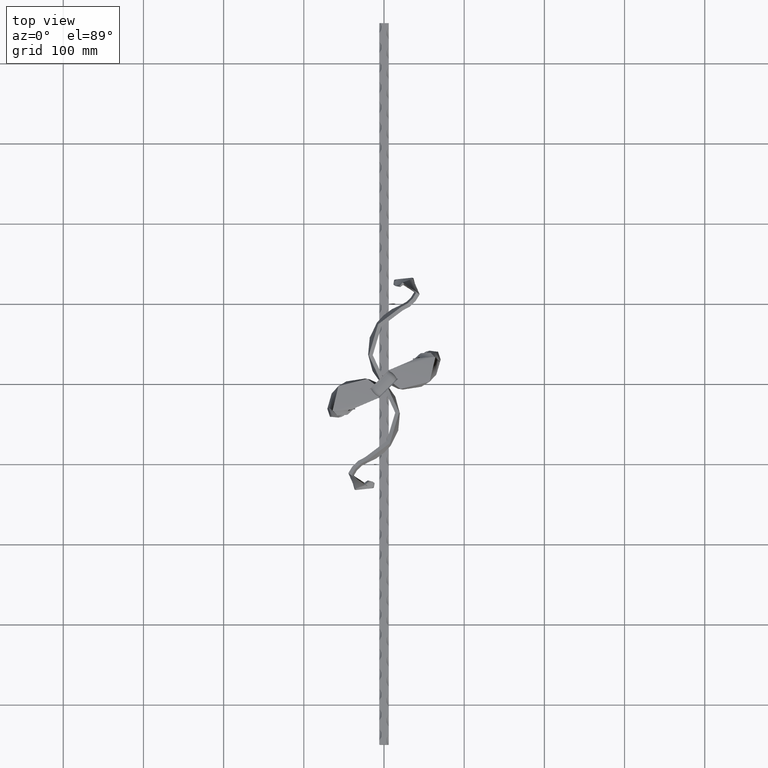
[diagram: clean part render]
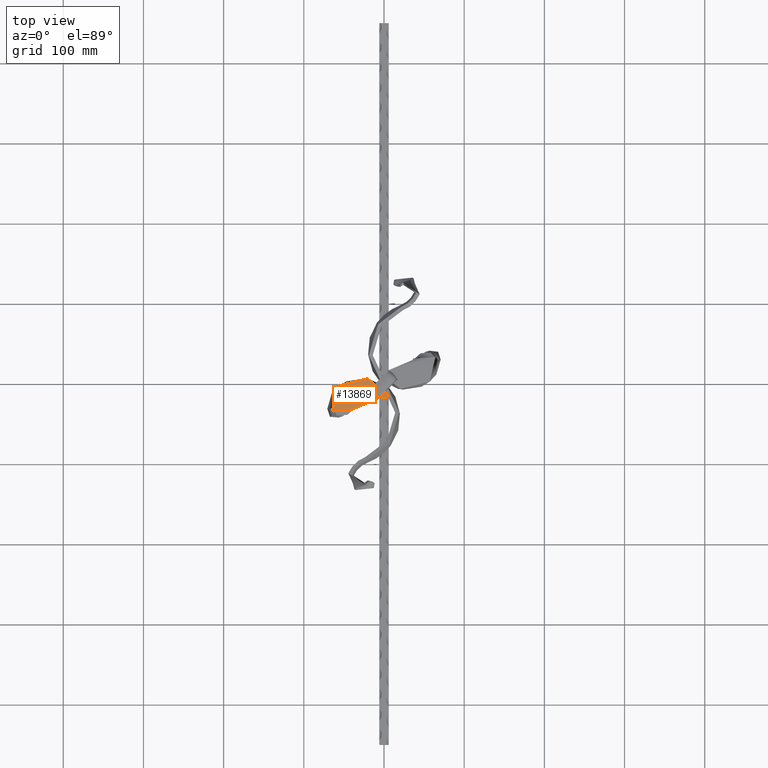
[diagram: same view with one face highlighted and labeled with its STEP entity id]
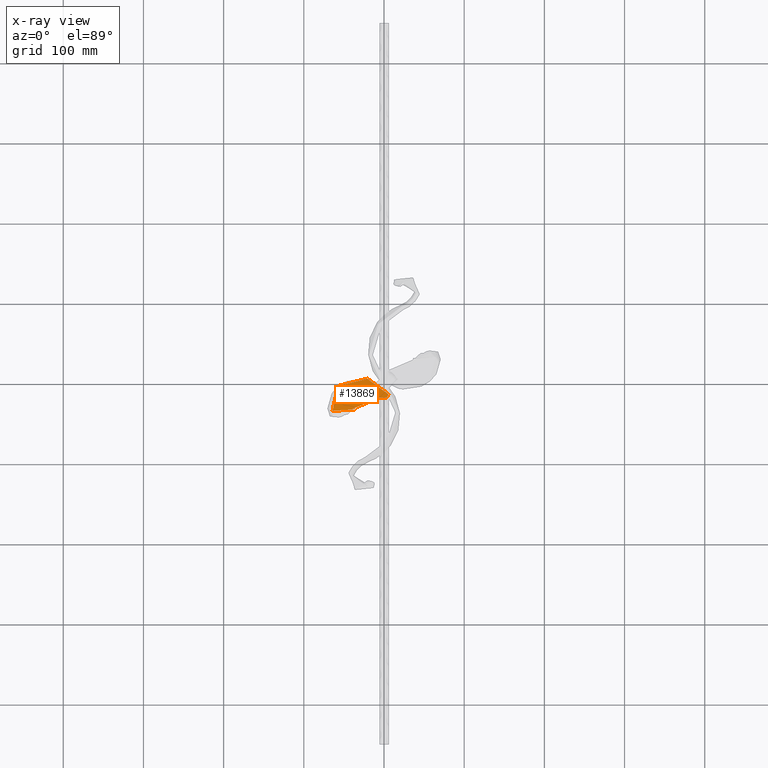
[diagram: x-ray of the same camera — body ghosted, the highlighted face saturated]
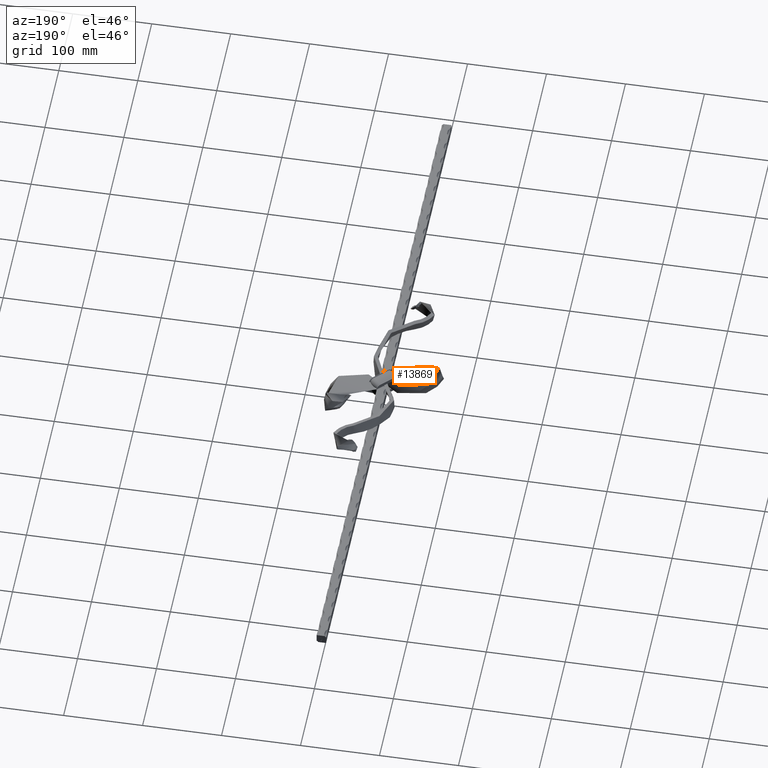
[diagram: same view with one face highlighted and labeled with its STEP entity id]
A machine part, top view. The second image highlights one B-rep face of the part: STEP entity #13869.
The next image is the same camera in x-ray: the body ghosted, the highlighted face saturated — about 0% of this face is hidden behind the body in this view.
A second angle (auxiliary view) of the same face is appended — the face is thin or edge-on in the first view.
In plain terms, the highlighted face is a freeform B-spline surface patch.
Its self-contained STEP definition (entity closure, byte-faithful):
#158 = CARTESIAN_POINT ( 'NONE',  ( 67.78751914885040719, 25.33979566040818554, 6.055768506382531946 ) ) ;
#163 = CARTESIAN_POINT ( 'NONE',  ( -2.475266252115406740, 5.742457473856078742, 6.000228846592173149 ) ) ;
#238 = CARTESIAN_POINT ( 'NONE',  ( 35.96194749927544621, 33.51179549491578769, 3.664867577499942186 ) ) ;
#301 = CARTESIAN_POINT ( 'NONE',  ( 24.92863133739036741, -7.257174107230437876, 5.980899869072010766 ) ) ;
#315 = B_SPLINE_CURVE_WITH_KNOTS ( 'NONE', 3,
 ( #21912, #13741, #18796, #16956, #8547, #8634, #1792, #158, #18641, #11725, #3429, #15371, #3276, #4980, #13518, #5124, #13446, #16874, #10109 ),
 .UNSPECIFIED., .F., .F.,
 ( 4, 1, 1, 1, 2, 2, 2, 1, 1, 1, 1, 2, 4 ),
 ( 0.02124183258938239574, 0.09576808707085894545, 0.1436521306062883974, 0.1915361741417178909, 0.2873042612127578166, 0.3299786063808718972, 0.4101979479414661900, 0.5673712298305753077, 0.6459578707748998561, 0.7245445117192245155, 0.7823707747071005913, 0.8817177936078736122, 0.9722380465416801121 ),
 .UNSPECIFIED. ) ;
#378 = CARTESIAN_POINT ( 'NONE',  ( 37.49622189125887672, 28.39810260074388992, 4.625000000000017764 ) ) ;
#459 = CARTESIAN_POINT ( 'NONE',  ( 67.78751914885040719, 25.33979566040818554, 6.055768506382531946 ) ) ;
#530 = CARTESIAN_POINT ( 'NONE',  ( 64.76554736995946371, 25.11351119081028216, 5.398745058738179559 ) ) ;
#532 = CARTESIAN_POINT ( 'NONE',  ( 39.55157802475095252, 31.63531004209999864, 5.425466922936881708 ) ) ;
#606 = CARTESIAN_POINT ( 'NONE',  ( 11.16462733762305248, 6.190484130613902458, 5.902392135463195189 ) ) ;
#687 = CARTESIAN_POINT ( 'NONE',  ( 34.89018020740272163, 2.234102114824530805, 6.370563190184192592 ) ) ;
#691 = CARTESIAN_POINT ( 'NONE',  ( 39.07789981111618260, 31.61575376828017880, 5.192329246889811678 ) ) ;
#764 = CARTESIAN_POINT ( 'NONE',  ( 55.39504986618830884, 12.32982592348945694, 6.535990543042911050 ) ) ;
#833 = CARTESIAN_POINT ( 'NONE',  ( 61.95032820998248724, 26.46173790643175749, 4.694164555552345242 ) ) ;
#854 = CARTESIAN_POINT ( 'NONE',  ( 34.42870574311262288, 5.275500527045942967, 6.509974570313941555 ) ) ;
#1145 = ORIENTED_EDGE ( 'NONE', *, *, #3188, .F. ) ;
#1392 = EDGE_CURVE ( 'NONE', #4367, #15279, #315, .T. ) ;
#1562 = CARTESIAN_POINT ( 'NONE',  ( 35.99022107580695717, 31.81636846293288556, 3.525723003153514945 ) ) ;
#1591 = B_SPLINE_CURVE_WITH_KNOTS ( 'NONE', 3,
 ( #9181, #12257, #10571, #15924, #5743, #7395, #14119, #21023 ),
 .UNSPECIFIED., .F., .F.,
 ( 4, 2, 2, 4 ),
 ( 0.000000000000000000, 0.002400446500058239264, 0.003600669750087356728, 0.004800893000116474192 ),
 .UNSPECIFIED. ) ;
#1694 = LINE ( 'NONE', #2631, #9662 ) ;
#1792 = CARTESIAN_POINT ( 'NONE',  ( 67.29345956402447371, 27.47542737493273535, 6.038736759272210541 ) ) ;
#1859 = CARTESIAN_POINT ( 'NONE',  ( 36.27460360027330921, -6.890093121839623969, 5.952329049794909288 ) ) ;
#1925 = CARTESIAN_POINT ( 'NONE',  ( 49.57428314846590922, 41.41504057271503569, 4.959566565015220085 ) ) ;
#2015 = CARTESIAN_POINT ( 'NONE',  ( 6.261743375417660573, -0.6249249995802929059, 6.000252807426082136 ) ) ;
#2090 = CARTESIAN_POINT ( 'NONE',  ( 48.99993772959753358, 39.96541614236809181, 4.719439006065108799 ) ) ;
#2158 = CARTESIAN_POINT ( 'NONE',  ( 36.32655600472004664, 28.62137477515700823, 3.937500000000023537 ) ) ;
#2240 = CARTESIAN_POINT ( 'NONE',  ( 38.66588777779782049, 28.17483042633064372, 5.312500000000026645 ) ) ;
#2243 = CARTESIAN_POINT ( 'NONE',  ( 39.69592675552323868, 31.64568538147078414, 5.494252712104712444 ) ) ;
#2324 = CARTESIAN_POINT ( 'NONE',  ( 39.83555366433668610, 27.95155825191750765, 6.000000000000024869 ) ) ;
#2400 = CARTESIAN_POINT ( 'NONE',  ( 38.41678908842914097, 32.30546065333506078, 5.117038029816463940 ) ) ;
#2474 = CARTESIAN_POINT ( 'NONE',  ( 2.999999999999996891, 17.19408178538438037, 6.000000000000005329 ) ) ;
#2477 = CARTESIAN_POINT ( 'NONE',  ( 38.79374274419378565, 31.61488462202156313, 5.047374381636508645 ) ) ;
#2563 = CARTESIAN_POINT ( 'NONE',  ( 39.23506961814698002, 31.90334903947485046, 5.601094847255301268 ) ) ;
#2567 = CARTESIAN_POINT ( 'NONE',  ( 39.91104143947853800, 31.66509525779022383, 5.594383947220142872 ) ) ;
#2631 = CARTESIAN_POINT ( 'NONE',  ( 5.999999999999996447, 17.19408178538438392, 6.000000000000000000 ) ) ;
#2802 = ORIENTED_EDGE ( 'NONE', *, *, #1392, .F. ) ;
#3188 = EDGE_CURVE ( 'NONE', #15279, #18254, #1591, .T. ) ;
#3276 = CARTESIAN_POINT ( 'NONE',  ( 36.27460360027330921, -6.890093121839623969, 5.952329049794909288 ) ) ;
#3429 = CARTESIAN_POINT ( 'NONE',  ( 61.24315616918526928, 5.573208370831318703, 5.944873890173536957 ) ) ;
#3582 = CARTESIAN_POINT ( 'NONE',  ( 5.771454979197120139, -1.306465912599713786, 6.010038874622371630 ) ) ;
#3658 = CARTESIAN_POINT ( 'NONE',  ( 59.15234096931875740, 39.44147743785064364, 5.490994078522715149 ) ) ;
#3723 = CARTESIAN_POINT ( 'NONE',  ( 36.78022802899338473, 33.10968388105554538, 4.148924394938783067 ) ) ;
#3788 = CARTESIAN_POINT ( 'NONE',  ( 35.81312913598306835, -3.848694709618247778, 6.091740429924674238 ) ) ;
#3869 = CARTESIAN_POINT ( 'NONE',  ( 35.99022107580695717, 31.81636846293288556, 3.525723003153514945 ) ) ;
#3915 = CARTESIAN_POINT ( 'NONE',  ( -3.368218952843437197, 17.19408178538438392, 6.000000000000000000 ) ) ;
#3944 = CARTESIAN_POINT ( 'NONE',  ( 10.18405054518197694, 4.827402304575065806, 5.921964269855778618 ) ) ;
#4014 = CARTESIAN_POINT ( 'NONE',  ( 61.82393420102659576, 20.79413701487071364, 5.282477787618629073 ) ) ;
#4017 = CARTESIAN_POINT ( 'NONE',  ( 39.77254780129255352, 31.65233839789734915, 5.530184761808498273 ) ) ;
#4096 = CARTESIAN_POINT ( 'NONE',  ( 63.25456148051407723, 25.00036895601140330, 5.070233334916003365 ) ) ;
#4097 = CARTESIAN_POINT ( 'NONE',  ( 38.72913807029789979, 31.61543762341368335, 5.014096068438600007 ) ) ;
#4177 = CARTESIAN_POINT ( 'NONE',  ( 25.61194426662866874, 3.716409713257752934, 6.185710357224781575 ) ) ;
#4328 = CARTESIAN_POINT ( 'NONE',  ( 25.67406362383214713, 4.714008242393042281, 6.204329492511395650 ) ) ;
#4367 = VERTEX_POINT ( 'NONE', #1562 ) ;
#4517 = CARTESIAN_POINT ( 'NONE',  ( 4.354047692751947807, 13.39511117512931193, 5.951392378621586765 ) ) ;
#4980 = CARTESIAN_POINT ( 'NONE',  ( 24.92863133739036741, -7.257174107230437876, 5.980899869072010766 ) ) ;
#5107 = CARTESIAN_POINT ( 'NONE',  ( 5.999999999999996447, 17.19408178538438392, 6.000000000000000000 ) ) ;
#5124 = CARTESIAN_POINT ( 'NONE',  ( 5.771454979197120139, -1.306465912599713786, 6.010038874622371630 ) ) ;
#5211 = CARTESIAN_POINT ( 'NONE',  ( 65.83624192201310166, 27.19896661079612343, 5.672035249166793136 ) ) ;
#5280 = CARTESIAN_POINT ( 'NONE',  ( 64.38756876894242964, 33.96805750668341517, 5.767555573813750058 ) ) ;
#5345 = CARTESIAN_POINT ( 'NONE',  ( 66.89284315797378611, 15.54664384940721966, 6.000708536967157336 ) ) ;
#5425 = CARTESIAN_POINT ( 'NONE',  ( 66.70515786812310921, 19.58167038311344044, 5.870923375250181486 ) ) ;
#5506 = CARTESIAN_POINT ( 'NONE',  ( 40.29139783412429665, 39.25087148512989188, 4.287168943749825267 ) ) ;
#5571 = CARTESIAN_POINT ( 'NONE',  ( 1.754226505212426845, 12.82078379764407927, 5.964680208987364729 ) ) ;
#5574 = CARTESIAN_POINT ( 'NONE',  ( 37.30135730290349727, 31.68686412112322515, 4.252230876424326844 ) ) ;
#5643 = CARTESIAN_POINT ( 'NONE',  ( 49.52493280283376009, 3.159039780631549554, 6.366689867750829457 ) ) ;
#5646 = CARTESIAN_POINT ( 'NONE',  ( 38.83924326228088830, 31.61467153479954817, 5.070736643461824400 ) ) ;
#5726 = CARTESIAN_POINT ( 'NONE',  ( 60.82341073563442535, 18.47800254928252173, 5.699009748798920860 ) ) ;
#5731 = CARTESIAN_POINT ( 'NONE',  ( 37.52214087797640474, 31.67040684066118317, 4.372431022452776261 ) ) ;
#5743 = CARTESIAN_POINT ( 'NONE',  ( -3.884234170481448700, 15.68620288815481345, 5.998639402347625271 ) ) ;
#5799 = CARTESIAN_POINT ( 'NONE',  ( 41.35914031390768031, 36.79284531735022057, 4.943106436939184611 ) ) ;
#5867 = CARTESIAN_POINT ( 'NONE',  ( 48.31072322695575139, 38.22586682595181173, 4.431285935324967618 ) ) ;
#5871 = CARTESIAN_POINT ( 'NONE',  ( 39.29939528159422224, 31.62246212674773460, 5.302556405643923831 ) ) ;
#6054 = CARTESIAN_POINT ( 'NONE',  ( 16.78434660804482448, 5.457414951173243267, 5.933330555472765333 ) ) ;
#6414 = EDGE_LOOP ( 'NONE', ( #1145, #2802, #10373, #12644, #6982 ) ) ;
#6556 = EDGE_CURVE ( 'NONE', #9265, #10148, #6898, .T. ) ;
#6661 = EDGE_CURVE ( 'NONE', #4367, #9265, #16997, .T. ) ;
#6898 = B_SPLINE_CURVE_WITH_KNOTS ( 'NONE', 3,
 ( #15854, #7552, #16233, #18013, #12861, #9336, #16301, #11032, #11169, #9397, #21256, #7637, #854, #4328, #6054, #21330, #17793, #19624, #7767 ),
 .UNSPECIFIED., .F., .F.,
 ( 4, 1, 1, 1, 2, 2, 2, 1, 1, 1, 1, 2, 4 ),
 ( 0.03259189335958653094, 0.09576808707085895933, 0.1436521306062883974, 0.1915361741417178909, 0.2873042612127578166, 0.3299786063808718972, 0.4101979479414661900, 0.5673712298305753077, 0.6459578707748998561, 0.7245445117192245155, 0.7823707747071005913, 0.8817177936078736122, 1.000000000000000000 ),
 .UNSPECIFIED. ) ;
#6924 = CARTESIAN_POINT ( 'NONE',  ( 13.93705345083019331, -2.325154199492613483, 5.988006689235508162 ) ) ;
#6982 = ORIENTED_EDGE ( 'NONE', *, *, #13896, .T. ) ;
#6997 = CARTESIAN_POINT ( 'NONE',  ( 60.71151014164006909, 6.187446330163872688, 5.998611767707116016 ) ) ;
#7082 = CARTESIAN_POINT ( 'NONE',  ( 51.61661773081361559, -1.228461888612945474, 5.998095591037865049 ) ) ;
#7160 = CARTESIAN_POINT ( 'NONE',  ( 13.30432163811579827, -4.054614010751691033, 6.000156941182778425 ) ) ;
#7225 = CARTESIAN_POINT ( 'NONE',  ( 12.98795573175861229, -4.919343916381231807, 6.006232067156416221 ) ) ;
#7295 = CARTESIAN_POINT ( 'NONE',  ( 60.25539823220407953, 31.62026508105446254, 4.312426428619006380 ) ) ;
#7299 = CARTESIAN_POINT ( 'NONE',  ( 37.81506295078452240, 31.65112781705030898, 4.530835433988153582 ) ) ;
#7381 = CARTESIAN_POINT ( 'NONE',  ( 62.92180663799015861, 26.64604508252286763, 4.938632228955956549 ) ) ;
#7385 = CARTESIAN_POINT ( 'NONE',  ( 37.85825387284692312, 31.64858309958712468, 4.554065908352169068 ) ) ;
#7395 = CARTESIAN_POINT ( 'NONE',  ( -3.595446686993701846, 16.42858063242431399, 5.999099166466399957 ) ) ;
#7452 = CARTESIAN_POINT ( 'NONE',  ( 64.13401023872869189, 16.87907962207781409, 5.863572724163407024 ) ) ;
#7455 = CARTESIAN_POINT ( 'NONE',  ( 39.74349111433942028, 31.64976764776481488, 5.516587188548984777 ) ) ;
#7525 = CARTESIAN_POINT ( 'NONE',  ( 62.36629238625955907, 20.65941850023101978, 5.347860630688801464 ) ) ;
#7528 = CARTESIAN_POINT ( 'NONE',  ( 38.05912589209047781, 31.63703347051963277, 4.661984647052786812 ) ) ;
#7552 = CARTESIAN_POINT ( 'NONE',  ( 40.39322990585680628, 33.84438400017803161, 5.338322078328364029 ) ) ;
#7611 = CARTESIAN_POINT ( 'NONE',  ( 34.58253056454268659, 4.261701056305480684, 6.463504110270690717 ) ) ;
#7637 = CARTESIAN_POINT ( 'NONE',  ( 47.01491088925755690, 8.424041783724865340, 6.809002999806421208 ) ) ;
#7767 = CARTESIAN_POINT ( 'NONE',  ( 5.999999999999996447, 17.19408178538438392, 6.000000000000000000 ) ) ;
#8547 = CARTESIAN_POINT ( 'NONE',  ( 59.45682631241682259, 39.74511195440689448, 5.618703187916818109 ) ) ;
#8634 = CARTESIAN_POINT ( 'NONE',  ( 64.80078582261627673, 34.20283674924631612, 5.913068488333225403 ) ) ;
#8639 = CARTESIAN_POINT ( 'NONE',  ( 61.24315616918526928, 5.573208370831318703, 5.944873890173536957 ) ) ;
#8716 = CARTESIAN_POINT ( 'NONE',  ( 25.11498940900080257, -4.264378519824576053, 6.036757274931862760 ) ) ;
#8775 = CARTESIAN_POINT ( 'NONE',  ( 66.80772035002064513, 27.38327378688718028, 5.916502922570404444 ) ) ;
#8847 = CARTESIAN_POINT ( 'NONE',  ( 59.45682631241682259, 39.74511195440689448, 5.618703187916818109 ) ) ;
#8933 = CARTESIAN_POINT ( 'NONE',  ( 36.23470767584807106, 33.37775829029570929, 3.826219849979555665 ) ) ;
#9011 = CARTESIAN_POINT ( 'NONE',  ( 62.47871048718148046, 17.67854108568015903, 5.781291236481171048 ) ) ;
#9014 = CARTESIAN_POINT ( 'NONE',  ( 39.22634877176457024, 31.61980693532723308, 5.266417721161848142 ) ) ;
#9086 = CARTESIAN_POINT ( 'NONE',  ( 47.43324787485357064, 7.546541449875976859, 6.735284144463825839 ) ) ;
#9163 = CARTESIAN_POINT ( 'NONE',  ( 65.07808331242428324, 19.98582592703251137, 5.674774846039658982 ) ) ;
#9167 = CARTESIAN_POINT ( 'NONE',  ( 37.14926255049633141, 31.69937256794586844, 4.168939900914242713 ) ) ;
#9181 = CARTESIAN_POINT ( 'NONE',  ( -5.566395071431973207, 12.98341113225369803, 6.003147285503988684 ) ) ;
#9250 = CARTESIAN_POINT ( 'NONE',  ( 57.62991425382837463, 37.92330485506936100, 4.852448531552210120 ) ) ;
#9254 = CARTESIAN_POINT ( 'NONE',  ( 39.35109487414210605, 31.62461081639703764, 5.328002147978513570 ) ) ;
#9265 = VERTEX_POINT ( 'NONE', #10391 ) ;
#9320 = CARTESIAN_POINT ( 'NONE',  ( 35.35165467169306197, -0.8072962973968175193, 6.231151810054411655 ) ) ;
#9323 = CARTESIAN_POINT ( 'NONE',  ( 38.82565193507791435, 31.61471880223971809, 5.063765148026906360 ) ) ;
#9336 = CARTESIAN_POINT ( 'NONE',  ( 59.84218117853022534, 31.38548583849156515, 4.166913514099531035 ) ) ;
#9397 = CARTESIAN_POINT ( 'NONE',  ( 60.82341073563442535, 18.47800254928252173, 5.699009748798920860 ) ) ;
#9451 = CARTESIAN_POINT ( 'NONE',  ( 11.65491573384359114, 6.872025043633322561, 5.892606068266906583 ) ) ;
#9662 = VECTOR ( 'NONE', #14485, 1000.000000000000000 ) ;
#10109 = CARTESIAN_POINT ( 'NONE',  ( -5.566395071431973207, 12.98341113225369803, 6.003147285503988684 ) ) ;
#10148 = VERTEX_POINT ( 'NONE', #5107 ) ;
#10340 = CARTESIAN_POINT ( 'NONE',  ( 52.03495471640964354, -2.105962222461836841, 5.924376735695270568 ) ) ;
#10373 = ORIENTED_EDGE ( 'NONE', *, *, #6661, .T. ) ;
#10391 = CARTESIAN_POINT ( 'NONE',  ( 39.91470169349528874, 31.66713832851851507, 5.595772413403775403 ) ) ;
#10403 = CARTESIAN_POINT ( 'NONE',  ( 35.15689011818112419, 28.84464694957020825, 3.250000000000019540 ) ) ;
#10485 = CARTESIAN_POINT ( 'NONE',  ( 68.33223242382194940, 19.17751483919433753, 6.067071904460695109 ) ) ;
#10559 = CARTESIAN_POINT ( 'NONE',  ( -6.000000000000001776, 17.19408178538438392, 6.000000000000000000 ) ) ;
#10571 = CARTESIAN_POINT ( 'NONE',  ( -4.604104291176557062, 14.25942947526313631, 5.999194757549902057 ) ) ;
#10621 = CARTESIAN_POINT ( 'NONE',  ( -5.178629994892970601, 11.28924412435012492, 6.000114423296086130 ) ) ;
#10693 = CARTESIAN_POINT ( 'NONE',  ( 61.08183233955181635, 32.08982356618028575, 4.603452257657952629 ) ) ;
#10697 = CARTESIAN_POINT ( 'NONE',  ( 39.33044865949815971, 31.62373361087950130, 5.317849829733732214 ) ) ;
#10780 = CARTESIAN_POINT ( 'NONE',  ( 16.46798070168764383, 4.592685045543703382, 5.939405681446403129 ) ) ;
#10784 = CARTESIAN_POINT ( 'NONE',  ( 39.87213912132692428, 31.66120526359727450, 5.576616310262877185 ) ) ;
#10855 = CARTESIAN_POINT ( 'NONE',  ( -0.8455946823271052182, 12.24645642015884484, 5.977968039353124041 ) ) ;
#10858 = CARTESIAN_POINT ( 'NONE',  ( 36.34420390854144500, 31.77579802915670726, 3.723958582754494540 ) ) ;
#10923 = CARTESIAN_POINT ( 'NONE',  ( 62.24723755421707239, 24.92494079947876884, 4.851225519034551681 ) ) ;
#10927 = CARTESIAN_POINT ( 'NONE',  ( 38.84828549434486433, 31.61464532067510902, 5.075372514939032520 ) ) ;
#11006 = CARTESIAN_POINT ( 'NONE',  ( 38.96230944157436227, 32.03738624409493241, 5.439742574775689121 ) ) ;
#11010 = CARTESIAN_POINT ( 'NONE',  ( 37.75413799761410161, 31.65483538487204385, 4.498016500116548855 ) ) ;
#11032 = CARTESIAN_POINT ( 'NONE',  ( 61.74357559106857707, 24.88722672121244983, 4.741721611093825395 ) ) ;
#11169 = CARTESIAN_POINT ( 'NONE',  ( 61.82393420102659576, 20.79413701487071364, 5.282477787618629073 ) ) ;
#11725 = CARTESIAN_POINT ( 'NONE',  ( 67.44460974182284474, 15.28015669487311001, 6.028135699527905622 ) ) ;
#11977 = CARTESIAN_POINT ( 'NONE',  ( -5.566395071431973207, 12.98341113225369803, 6.003147285503988684 ) ) ;
#12019 = CARTESIAN_POINT ( 'NONE',  ( -1.008838002062574235, 6.508227310502897822, 5.982511739437819109 ) ) ;
#12101 = CARTESIAN_POINT ( 'NONE',  ( 64.80078582261627673, 34.20283674924631612, 5.913068488333225403 ) ) ;
#12170 = CARTESIAN_POINT ( 'NONE',  ( -6.045237057406145809, 11.09780166518837952, 6.004543700084677305 ) ) ;
#12239 = CARTESIAN_POINT ( 'NONE',  ( 58.54337028312280466, 38.83420840473817748, 5.235575859734509230 ) ) ;
#12257 = CARTESIAN_POINT ( 'NONE',  ( -5.049968153696039685, 13.59489467252576311, 6.000634987941336540 ) ) ;
#12321 = CARTESIAN_POINT ( 'NONE',  ( -5.000000000000000888, 17.19408178538438392, 6.000000000000000000 ) ) ;
#12407 = CARTESIAN_POINT ( 'NONE',  ( 14.88615116990171039, 0.2690355173960058410, 5.969781311314579675 ) ) ;
#12411 = CARTESIAN_POINT ( 'NONE',  ( 39.61506136885974882, 31.63957955927690335, 5.455870173442059823 ) ) ;
#12470 = CARTESIAN_POINT ( 'NONE',  ( 25.30134748061129457, -1.271582932418686696, 6.092614680791690773 ) ) ;
#12472 = CARTESIAN_POINT ( 'NONE',  ( 37.63069336470417880, 31.66275468447753028, 4.431347197230762980 ) ) ;
#12543 = CARTESIAN_POINT ( 'NONE',  ( 4.856874998148649425, 9.571306657090156378, 5.911643310820373642 ) ) ;
#12629 = CARTESIAN_POINT ( 'NONE',  ( 4.999999999999997335, 17.19408178538438747, 6.000000000000000000 ) ) ;
#12632 = CARTESIAN_POINT ( 'NONE',  ( 39.75629486939605073, 31.65090044039547834, 5.522581877744118017 ) ) ;
#12644 = ORIENTED_EDGE ( 'NONE', *, *, #6556, .T. ) ;
#12708 = CARTESIAN_POINT ( 'NONE',  ( 59.84218117853022534, 31.38548583849156515, 4.166913514099531035 ) ) ;
#12711 = CARTESIAN_POINT ( 'NONE',  ( 39.72957277859095626, 31.64854918099850067, 5.510063277868597176 ) ) ;
#12768 = CARTESIAN_POINT ( 'NONE',  ( 5.999999999999996447, 17.19408178538438392, 6.000000000000000000 ) ) ;
#12837 = CARTESIAN_POINT ( 'NONE',  ( 25.67406362383214713, 4.714008242393042281, 6.204329492511395650 ) ) ;
#12861 = CARTESIAN_POINT ( 'NONE',  ( 55.80300219524019667, 36.10149775573191278, 4.086193875187591473 ) ) ;
#13046 = CARTESIAN_POINT ( 'NONE',  ( 34.42870574311262288, 5.275500527045942967, 6.509974570313941555 ) ) ;
#13446 = CARTESIAN_POINT ( 'NONE',  ( -2.062951567369697869, 4.509216867069449464, 6.009208775363542365 ) ) ;
#13518 = CARTESIAN_POINT ( 'NONE',  ( 12.98795573175861229, -4.919343916381231807, 6.006232067156416221 ) ) ;
#13741 = CARTESIAN_POINT ( 'NONE',  ( 37.30178806984606865, 35.12382633979964197, 3.847114291367009553 ) ) ;
#13746 = CARTESIAN_POINT ( 'NONE',  ( 49.68915223223958577, 41.70496545878442163, 5.007592076805244652 ) ) ;
#13869 = ADVANCED_FACE ( 'NONE', ( #16842 ), #19397, .T. ) ;
#13881 = CARTESIAN_POINT ( 'NONE',  ( 49.34454498091874797, 40.83519080057629225, 4.863515541435173617 ) ) ;
#13896 = EDGE_CURVE ( 'NONE', #10148, #18254, #1694, .T. ) ;
#13966 = CARTESIAN_POINT ( 'NONE',  ( -3.445415869866611747, 11.67212904267361750, 5.991255869718910887 ) ) ;
#14038 = CARTESIAN_POINT ( 'NONE',  ( 63.56113466159489178, 33.49849902155766301, 5.476529744774799369 ) ) ;
#14105 = CARTESIAN_POINT ( 'NONE',  ( 15.83524888897327010, 2.863225234284625831, 5.951555933393683162 ) ) ;
#14119 = CARTESIAN_POINT ( 'NONE',  ( -3.471474573646270656, 16.80744036653881324, 5.999508220048831220 ) ) ;
#14187 = CARTESIAN_POINT ( 'NONE',  ( 61.46458899597865866, 26.36958431838620953, 4.571930718850539144 ) ) ;
#14268 = CARTESIAN_POINT ( 'NONE',  ( 64.37902428000151644, 26.92250584665943336, 5.305333739061375731 ) ) ;
#14273 = CARTESIAN_POINT ( 'NONE',  ( 37.86686270956292333, 31.64808346089040114, 4.558692996599357450 ) ) ;
#14337 = CARTESIAN_POINT ( 'NONE',  ( 61.37517731948347688, 18.21151539474841030, 5.726436911359670034 ) ) ;
#14340 = CARTESIAN_POINT ( 'NONE',  ( 39.78750814454363649, 31.65366434109482441, 5.537167793520088033 ) ) ;
#14405 = CARTESIAN_POINT ( 'NONE',  ( 39.44566503549039282, 28.02598231005523743, 5.770833333333358794 ) ) ;
#14485 = DIRECTION ( 'NONE',  ( -1.000000000000000000, 0.000000000000000000, 0.000000000000000000 ) ) ;
#15279 = VERTEX_POINT ( 'NONE', #11977 ) ;
#15371 = CARTESIAN_POINT ( 'NONE',  ( 52.03495471640964354, -2.105962222461836841, 5.924376735695270568 ) ) ;
#15446 = CARTESIAN_POINT ( 'NONE',  ( 40.38846533228640823, 39.02741456078628346, 4.346799624948856966 ) ) ;
#15524 = CARTESIAN_POINT ( 'NONE',  ( 67.78987423858899319, 19.31223335383403139, 6.001689061390522717 ) ) ;
#15600 = CARTESIAN_POINT ( 'NONE',  ( 66.27653325940499940, 25.22665342560927115, 5.727256782560355752 ) ) ;
#15668 = CARTESIAN_POINT ( 'NONE',  ( 40.87380282309694479, 37.91012993906824846, 4.644953030944020789 ) ) ;
#15743 = CARTESIAN_POINT ( 'NONE',  ( 48.26992184604545599, 5.791540782178155489, 6.587846433778642208 ) ) ;
#15747 = CARTESIAN_POINT ( 'NONE',  ( 37.86971771015279131, 31.64791816390637891, 4.560227335268426607 ) ) ;
#15831 = CARTESIAN_POINT ( 'NONE',  ( 1.190804373016605577, 7.656882065473113563, 5.955936078706265846 ) ) ;
#15854 = CARTESIAN_POINT ( 'NONE',  ( 39.91470169349528874, 31.66713832851851507, 5.595772413403775403 ) ) ;
#15907 = CARTESIAN_POINT ( 'NONE',  ( 55.80300219524019667, 36.10149775573191278, 4.086193875187591473 ) ) ;
#15924 = CARTESIAN_POINT ( 'NONE',  ( -4.049650010391493637, 15.32157914629208229, 5.998590162330111220 ) ) ;
#15977 = CARTESIAN_POINT ( 'NONE',  ( -6.505213034913026604E-16, 17.19408178538438392, 5.999999999999992006 ) ) ;
#15981 = CARTESIAN_POINT ( 'NONE',  ( 39.59523398384347814, 31.63820082144799173, 5.446398130678797855 ) ) ;
#16057 = CARTESIAN_POINT ( 'NONE',  ( 41.45620781206979899, 36.56938839300660504, 5.002737118138217198 ) ) ;
#16060 = CARTESIAN_POINT ( 'NONE',  ( 39.66155097682561603, 31.64300141127097277, 5.477980508319967967 ) ) ;
#16233 = CARTESIAN_POINT ( 'NONE',  ( 42.62257566103973261, 36.85125561041829201, 4.905498692582746401 ) ) ;
#16301 = CARTESIAN_POINT ( 'NONE',  ( 61.46458899597865866, 26.36958431838620953, 4.571930718850539144 ) ) ;
#16842 = FACE_OUTER_BOUND ( 'NONE', #6414, .T. ) ;
#16874 = CARTESIAN_POINT ( 'NONE',  ( -4.601016078111888064, 8.520692384911287220, 6.006454781056286940 ) ) ;
#16956 = CARTESIAN_POINT ( 'NONE',  ( 49.68915223223958577, 41.70496545878442163, 5.007592076805244652 ) ) ;
#16997 = B_SPLINE_CURVE_WITH_KNOTS ( 'NONE', 3,
 ( #3869, #10858, #19166, #9167, #5574, #5731, #12472, #11010, #7299, #19456, #7385, #14273, #15747, #7528, #17475, #21177, #19392, #4097, #2477, #9323, #5646, #10927, #21093, #17613, #691, #9014, #5871, #10697, #9254, #20946, #17773, #19328, #532, #15981, #12411, #16060, #2243, #12711, #7455, #21012, #12632, #4017, #14340, #10784, #2567, #17695 ),
 .UNSPECIFIED., .F., .F.,
 ( 4, 2, 2, 1, 1, 1, 1, 2, 2, 2, 1, 1, 1, 1, 2, 2, 1, 1, 1, 2, 2, 1, 2, 2, 1, 2, 2, 1, 2, 4 ),
 ( 0.000000000000000000, 0.2499999999999076850, 0.3749999999998615552, 0.4374999999998384070, 0.4687499999998269717, 0.4843749999998236411, 0.4921874999998242517, 0.4960937499998243627, 0.4999999999998244737, 0.6249999999997678524, 0.6874999999997397637, 0.7187499999997279954, 0.7343749999997242206, 0.7421874999997248867, 0.7460937499997275513, 0.7499999999997302158, 0.8124999999997807310, 0.8437499999998080424, 0.8593749999998195888, 0.8671874999998275824, 0.8749999999998355760, 0.9062499999998639977, 0.9218749999998760991, 0.9374999999998882005, 0.9531249999999003020, 0.9609374999999060751, 0.9628906249999092948, 0.9648437499999126254, 0.9687499999999211742, 1.000000000000000000 ),
 .UNSPECIFIED. ) ;
#17098 = CARTESIAN_POINT ( 'NONE',  ( 24.99075069459384935, -6.259575578095146753, 5.999519004358626617 ) ) ;
#17180 = CARTESIAN_POINT ( 'NONE',  ( 35.54677874702741747, 28.77022289143248202, 3.479166666666686503 ) ) ;
#17251 = CARTESIAN_POINT ( 'NONE',  ( -3.208480377141813111, 5.359572555532671423, 6.009087400169351945 ) ) ;
#17313 = CARTESIAN_POINT ( 'NONE',  ( -3.000000000000003109, 17.19408178538439103, 6.000000000000005329 ) ) ;
#17391 = CARTESIAN_POINT ( 'NONE',  ( 65.78930999027569726, 16.07961815847545850, 5.945854211845663428 ) ) ;
#17471 = CARTESIAN_POINT ( 'NONE',  ( 48.42559231072940662, 38.51579171202119056, 4.479311447114991296 ) ) ;
#17475 = CARTESIAN_POINT ( 'NONE',  ( 38.23255341449682732, 31.62892091252783544, 4.754259868078922757 ) ) ;
#17533 = CARTESIAN_POINT ( 'NONE',  ( 58.05328000391434529, 9.258636126826694124, 6.267301155375001542 ) ) ;
#17609 = CARTESIAN_POINT ( 'NONE',  ( 54.86340383864310866, 12.94406388282201092, 6.589728420576491885 ) ) ;
#17613 = CARTESIAN_POINT ( 'NONE',  ( 38.94661573054358428, 31.61447222800429202, 5.125737988701438042 ) ) ;
#17692 = CARTESIAN_POINT ( 'NONE',  ( 62.32148350057315156, 32.79416129386889622, 5.039991001216382216 ) ) ;
#17695 = CARTESIAN_POINT ( 'NONE',  ( 39.91470169349528874, 31.66713832851851507, 5.595772413403775403 ) ) ;
#17769 = CARTESIAN_POINT ( 'NONE',  ( 61.74357559106857707, 24.88722672121244983, 4.741721611093825395 ) ) ;
#17773 = CARTESIAN_POINT ( 'NONE',  ( 39.41767429916181698, 31.62763026550674539, 5.360646743880810305 ) ) ;
#17793 = CARTESIAN_POINT ( 'NONE',  ( 5.590089123175054908, 9.954191575413563697, 5.902784757243194846 ) ) ;
#18013 = CARTESIAN_POINT ( 'NONE',  ( 48.31072322695575139, 38.22586682595181173, 4.431285935324967618 ) ) ;
#18254 = VERTEX_POINT ( 'NONE', #3915 ) ;
#18641 = CARTESIAN_POINT ( 'NONE',  ( 68.33223242382194940, 19.17751483919433753, 6.067071904460695109 ) ) ;
#18796 = CARTESIAN_POINT ( 'NONE',  ( 41.33363190053722036, 39.52303654001091360, 4.367065640310960006 ) ) ;
#18799 = CARTESIAN_POINT ( 'NONE',  ( 7.242320167858768976, 0.7381568264585467443, 5.980680673033509365 ) ) ;
#18862 = CARTESIAN_POINT ( 'NONE',  ( 40.58260032861075928, 38.58050071209908083, 4.466060987346922140 ) ) ;
#18933 = CARTESIAN_POINT ( 'NONE',  ( 59.64821808654961188, 7.415922248828971775, 6.106087522774282128 ) ) ;
#19013 = CARTESIAN_POINT ( 'NONE',  ( 67.29345956402447371, 27.47542737493273535, 6.038736759272210541 ) ) ;
#19091 = CARTESIAN_POINT ( 'NONE',  ( 67.44460974182284474, 15.28015669487311001, 6.028135699527905622 ) ) ;
#19162 = CARTESIAN_POINT ( 'NONE',  ( 63.45100875672542173, 20.38998147095162139, 5.478626316829148024 ) ) ;
#19166 = CARTESIAN_POINT ( 'NONE',  ( 36.67812148478824952, 31.74152761077894525, 3.909560736585317997 ) ) ;
#19240 = CARTESIAN_POINT ( 'NONE',  ( 3.390446748095842455, 8.805536820443343515, 5.929360417974740116 ) ) ;
#19324 = CARTESIAN_POINT ( 'NONE',  ( 48.65533047827679525, 39.09564148415997664, 4.575362470695035100 ) ) ;
#19328 = CARTESIAN_POINT ( 'NONE',  ( 39.48550909963086042, 31.63117262383578776, 5.393665643407108412 ) ) ;
#19388 = CARTESIAN_POINT ( 'NONE',  ( 41.16500531758349268, 37.23975916603742320, 4.823845074541119438 ) ) ;
#19392 = CARTESIAN_POINT ( 'NONE',  ( 38.59676833139671004, 31.61742308276502200, 4.945544334045526291 ) ) ;
#19397 = B_SPLINE_SURFACE_WITH_KNOTS ( 'NONE', 3, 3, ( 
 ( #10403, #238, #5506, #13746, #8847, #12101, #19013, #459, #10485, #19091, #8639, #10340, #1859, #301, #7225, #3582, #17251, #12170, #10559 ),
 ( #17180, #8933, #15446, #1925, #3658, #5280, #8775, #20785, #15524, #5345, #6997, #7082, #20645, #17098, #7160, #2015, #163, #10621, #12321 ),
 ( #2158, #3723, #18862, #13881, #12239, #14038, #5211, #15600, #5425, #17391, #18933, #20715, #3788, #8716, #6924, #18799, #12019, #13966, #17313 ),
 ( #378, #20566, #15668, #2090, #9250, #17692, #14268, #530, #9163, #7452, #17533, #5643, #9320, #12470, #12407, #21008, #15831, #10855, #15977 ),
 ( #2240, #2400, #19388, #19324, #20943, #10693, #7381, #4096, #19162, #9011, #21173, #15743, #687, #20869, #14105, #3944, #19240, #5571, #2474 ),
 ( #14405, #11006, #5799, #17471, #21090, #7295, #833, #10923, #7525, #14337, #764, #9086, #7611, #4177, #10780, #606, #12543, #19453, #12629 ),
 ( #2324, #2563, #16057, #5867, #15907, #12708, #14187, #17769, #4014, #5726, #17609, #21242, #13046, #12837, #19538, #9451, #21307, #4517, #12768 ) ),
 .UNSPECIFIED., .F., .F., .F.,
 ( 4, 1, 1, 1, 4 ),
 ( 4, 1, 1, 1, 2, 2, 2, 1, 1, 1, 1, 2, 4 ),
 ( 0.000000000000000000, 0.03954647435897437613, 0.07909294871794872450, 0.1186394230769230729, 0.1581858974358974212 ),
 ( 0.000000000000000000, 0.09576808707085894545, 0.1436521306062883974, 0.1915361741417178909, 0.2873042612127578166, 0.3299786063808718972, 0.4101979479414661900, 0.5673712298305753077, 0.6459578707748998561, 0.7245445117192245155, 0.7823707747071005913, 0.8817177936078736122, 1.000000000000000000 ),
 .UNSPECIFIED. ) ;
#19453 = CARTESIAN_POINT ( 'NONE',  ( 3.487440630238774819, 13.20366871596757008, 5.955821655410177939 ) ) ;
#19456 = CARTESIAN_POINT ( 'NONE',  ( 37.84532642145828163, 31.64933706008406133, 4.547116080617840339 ) ) ;
#19538 = CARTESIAN_POINT ( 'NONE',  ( 16.78434660804482448, 5.457414951173243267, 5.933330555472765333 ) ) ;
#19624 = CARTESIAN_POINT ( 'NONE',  ( 4.354047692751947807, 13.39511117512931193, 5.951392378621586765 ) ) ;
#20566 = CARTESIAN_POINT ( 'NONE',  ( 37.59850855871115982, 32.70757226719533861, 4.632981212377619507 ) ) ;
#20645 = CARTESIAN_POINT ( 'NONE',  ( 36.12077877884323840, -5.876293651099159909, 5.998799509838161015 ) ) ;
#20715 = CARTESIAN_POINT ( 'NONE',  ( 50.77994375962148865, 0.5265387790848157223, 6.145533301723064667 ) ) ;
#20785 = CARTESIAN_POINT ( 'NONE',  ( 67.28385718570190477, 25.30208158214186653, 5.946264598441805660 ) ) ;
#20869 = CARTESIAN_POINT ( 'NONE',  ( 25.48770555222166223, 1.721212654987164026, 6.148472086651556978 ) ) ;
#20943 = CARTESIAN_POINT ( 'NONE',  ( 56.71645822453444907, 37.01240130540068662, 4.469321203369895912 ) ) ;
#20946 = CARTESIAN_POINT ( 'NONE',  ( 39.36015273138001191, 31.62500778692391989, 5.332450178250742745 ) ) ;
#21008 = CARTESIAN_POINT ( 'NONE',  ( 8.713185356520339653, 2.782779565516801057, 5.951322471444629336 ) ) ;
#21012 = CARTESIAN_POINT ( 'NONE',  ( 39.74517113547262426, 31.64991588922412546, 5.517374631856723610 ) ) ;
#21023 = CARTESIAN_POINT ( 'NONE',  ( -3.368218952843437197, 17.19408178538438392, 6.000000000000000000 ) ) ;
#21090 = CARTESIAN_POINT ( 'NONE',  ( 56.10748753833825475, 36.40513227228815651, 4.213902984581694433 ) ) ;
#21093 = CARTESIAN_POINT ( 'NONE',  ( 38.85171751052170208, 31.61463673415051900, 5.077131498931729325 ) ) ;
#21173 = CARTESIAN_POINT ( 'NONE',  ( 56.45834192127853868, 11.10135000482430456, 6.428514787975760925 ) ) ;
#21177 = CARTESIAN_POINT ( 'NONE',  ( 38.47783891481414997, 31.62061216325858481, 4.883338342134019072 ) ) ;
#21242 = CARTESIAN_POINT ( 'NONE',  ( 47.01491088925755690, 8.424041783724865340, 6.809002999806421208 ) ) ;
#21256 = CARTESIAN_POINT ( 'NONE',  ( 54.86340383864310866, 12.94406388282201092, 6.589728420576491885 ) ) ;
#21307 = CARTESIAN_POINT ( 'NONE',  ( 5.590089123175054908, 9.954191575413563697, 5.902784757243194846 ) ) ;
#21330 = CARTESIAN_POINT ( 'NONE',  ( 11.65491573384359114, 6.872025043633322561, 5.892606068266906583 ) ) ;
#21912 = CARTESIAN_POINT ( 'NONE',  ( 35.99022107580695717, 31.81636846293288556, 3.525723003153514945 ) ) ;